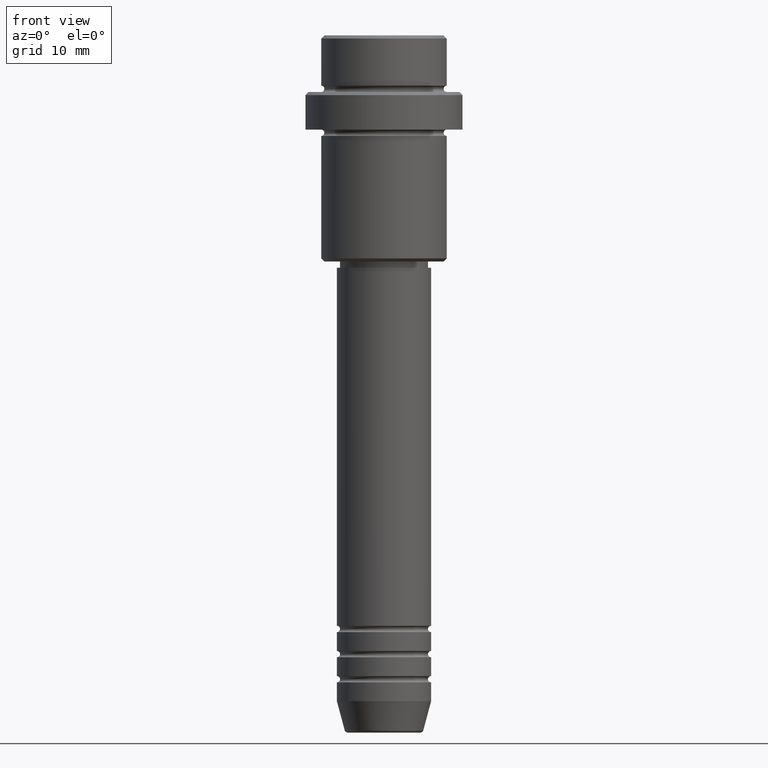
[diagram: clean part render]
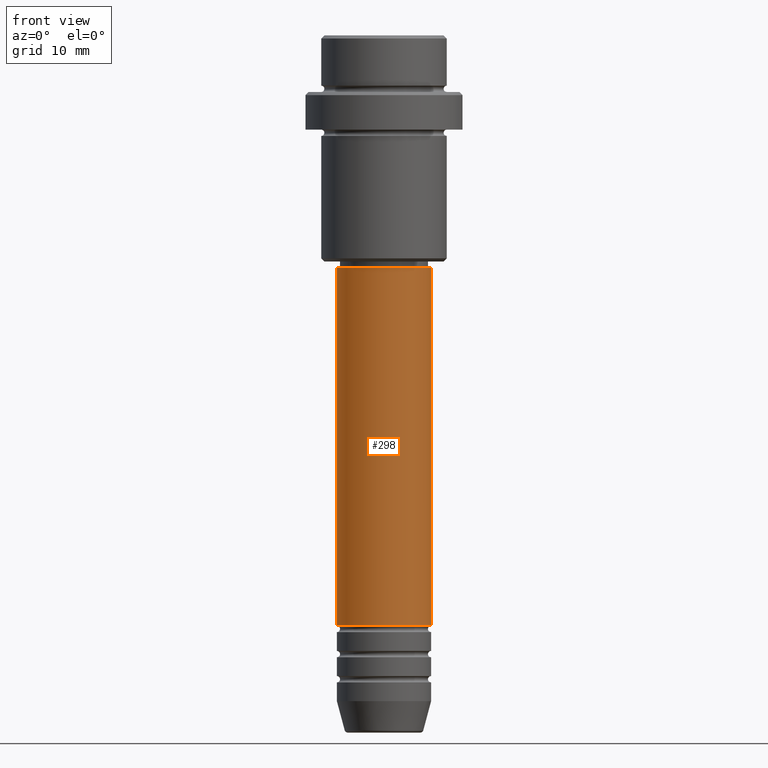
[diagram: same view with one face highlighted and labeled with its STEP entity id]
A machine part, front view. The second image highlights one B-rep face of the part: STEP entity #298.
In plain terms, the highlighted cylindrical surface (partial cylindrical patch) has radius 7.5 mm, axis along (-0, -0, 1).
Its self-contained STEP definition (entity closure, byte-faithful):
#2 = AXIS2_PLACEMENT_3D ( 'NONE', #962, #729, #843 ) ;
#94 = CARTESIAN_POINT ( 'NONE',  ( 7.500000000000000000, 0.000000000000000000, -37.00000000000002132 ) ) ;
#143 = EDGE_CURVE ( 'NONE', #1411, #1003, #507, .T. ) ;
#157 = EDGE_CURVE ( 'NONE', #1191, #1003, #1123, .T. ) ;
#237 = CARTESIAN_POINT ( 'NONE',  ( -7.500000000000000000, 9.184850993605147944E-16, 0.000000000000000000 ) ) ;
#257 = EDGE_CURVE ( 'NONE', #1182, #1411, #769, .T. ) ;
#289 = DIRECTION ( 'NONE',  ( -0.000000000000000000, -0.000000000000000000, 1.000000000000000000 ) ) ;
#298 = ADVANCED_FACE ( 'NONE', ( #975 ), #558, .T. ) ;
#375 = EDGE_CURVE ( 'NONE', #1182, #1191, #454, .T. ) ;
#454 = LINE ( 'NONE', #237, #796 ) ;
#507 = LINE ( 'NONE', #1399, #561 ) ;
#520 = AXIS2_PLACEMENT_3D ( 'NONE', #1331, #650, #757 ) ;
#535 = ORIENTED_EDGE ( 'NONE', *, *, #257, .T. ) ;
#547 = DIRECTION ( 'NONE',  ( -0.000000000000000000, -0.000000000000000000, 1.000000000000000000 ) ) ;
#558 = CYLINDRICAL_SURFACE ( 'NONE', #520, 7.500000000000000000 ) ;
#561 = VECTOR ( 'NONE', #850, 1000.000000000000000 ) ;
#650 = DIRECTION ( 'NONE',  ( -0.000000000000000000, -0.000000000000000000, 1.000000000000000000 ) ) ;
#699 = ORIENTED_EDGE ( 'NONE', *, *, #157, .F. ) ;
#729 = DIRECTION ( 'NONE',  ( -0.000000000000000000, -0.000000000000000000, 1.000000000000000000 ) ) ;
#746 = DIRECTION ( 'NONE',  ( 1.000000000000000000, 0.000000000000000000, 0.000000000000000000 ) ) ;
#757 = DIRECTION ( 'NONE',  ( 1.000000000000000000, 0.000000000000000000, 0.000000000000000000 ) ) ;
#769 = CIRCLE ( 'NONE', #2, 7.500000000000000000 ) ;
#770 = ORIENTED_EDGE ( 'NONE', *, *, #143, .T. ) ;
#796 = VECTOR ( 'NONE', #547, 1000.000000000000000 ) ;
#843 = DIRECTION ( 'NONE',  ( 1.000000000000000000, 0.000000000000000000, 0.000000000000000000 ) ) ;
#850 = DIRECTION ( 'NONE',  ( -0.000000000000000000, -0.000000000000000000, 1.000000000000000000 ) ) ;
#876 = CARTESIAN_POINT ( 'NONE',  ( -7.500000000000000000, 9.184850993605147944E-16, -37.00000000000002132 ) ) ;
#904 = ORIENTED_EDGE ( 'NONE', *, *, #375, .F. ) ;
#962 = CARTESIAN_POINT ( 'NONE',  ( 0.000000000000000000, 0.000000000000000000, -93.99999999999988631 ) ) ;
#975 = FACE_OUTER_BOUND ( 'NONE', #1128, .T. ) ;
#1003 = VERTEX_POINT ( 'NONE', #94 ) ;
#1123 = CIRCLE ( 'NONE', #1313, 7.500000000000000000 ) ;
#1128 = EDGE_LOOP ( 'NONE', ( #904, #535, #770, #699 ) ) ;
#1182 = VERTEX_POINT ( 'NONE', #1226 ) ;
#1191 = VERTEX_POINT ( 'NONE', #876 ) ;
#1208 = CARTESIAN_POINT ( 'NONE',  ( 7.500000000000000000, 0.000000000000000000, -93.99999999999988631 ) ) ;
#1226 = CARTESIAN_POINT ( 'NONE',  ( -7.500000000000000000, 9.184850993605147944E-16, -93.99999999999988631 ) ) ;
#1303 = CARTESIAN_POINT ( 'NONE',  ( 0.000000000000000000, 0.000000000000000000, -37.00000000000002132 ) ) ;
#1313 = AXIS2_PLACEMENT_3D ( 'NONE', #1303, #289, #746 ) ;
#1331 = CARTESIAN_POINT ( 'NONE',  ( 0.000000000000000000, 0.000000000000000000, 0.000000000000000000 ) ) ;
#1399 = CARTESIAN_POINT ( 'NONE',  ( 7.500000000000000000, 0.000000000000000000, 0.000000000000000000 ) ) ;
#1411 = VERTEX_POINT ( 'NONE', #1208 ) ;